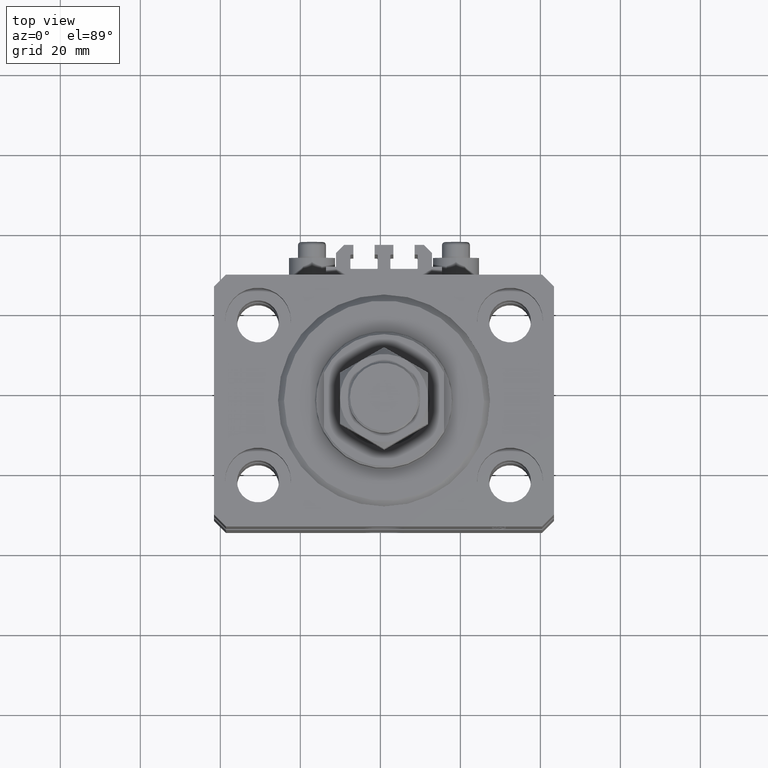
[diagram: clean part render]
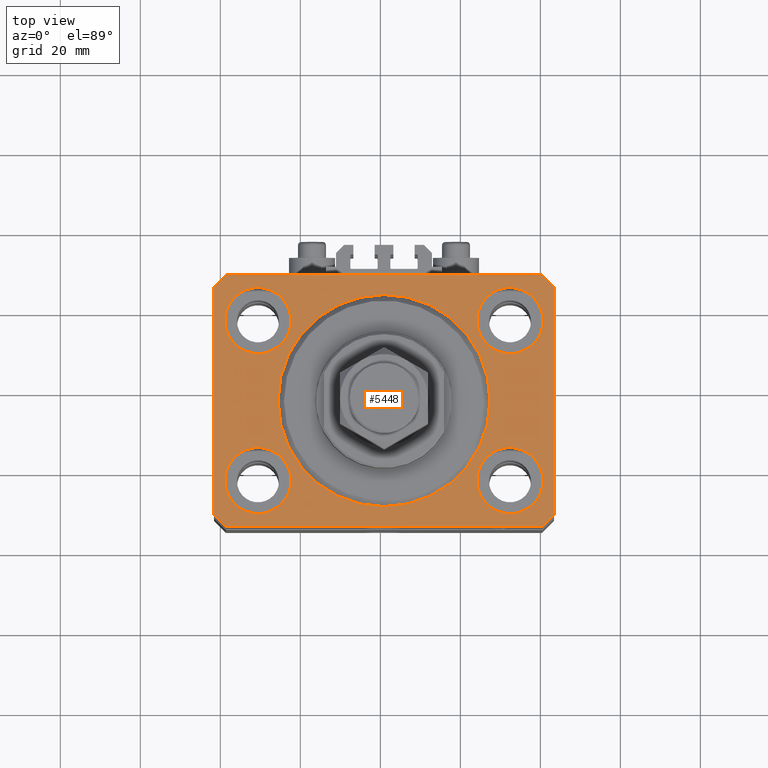
[diagram: same view with one face highlighted and labeled with its STEP entity id]
A machine part, top view. The second image highlights one B-rep face of the part: STEP entity #5448.
In plain terms, the highlighted planar face has unit normal (0, 0, 1).
Its self-contained STEP definition (entity closure, byte-faithful):
#318 = LINE ( 'NONE', #38929, #5635 ) ;
#1072 = DIRECTION ( 'NONE',  ( 0.000000000000000000, 0.000000000000000000, 1.000000000000000000 ) ) ;
#1230 = EDGE_CURVE ( 'NONE', #8570, #47015, #11390, .T. ) ;
#1261 = CIRCLE ( 'NONE', #27516, 8.249999999999992895 ) ;
#1678 = LINE ( 'NONE', #4918, #35743 ) ;
#1820 = CIRCLE ( 'NONE', #29678, 26.50000000000000355 ) ;
#1878 = FACE_BOUND ( 'NONE', #22616, .T. ) ;
#1919 = EDGE_LOOP ( 'NONE', ( #8960, #18256 ) ) ;
#2183 = VERTEX_POINT ( 'NONE', #15507 ) ;
#2328 = EDGE_CURVE ( 'NONE', #26723, #42005, #7178, .T. ) ;
#2385 = CARTESIAN_POINT ( 'NONE',  ( 0.000000000000000000, 0.000000000000000000, 0.000000000000000000 ) ) ;
#2644 = CIRCLE ( 'NONE', #33653, 8.249999999999992895 ) ;
#3558 = ORIENTED_EDGE ( 'NONE', *, *, #37922, .F. ) ;
#4709 = DIRECTION ( 'NONE',  ( 0.7071067811865483499, 0.7071067811865466846, 0.000000000000000000 ) ) ;
#4771 = EDGE_LOOP ( 'NONE', ( #26291, #34845, #44958, #41031, #20589, #34428, #11820, #7949 ) ) ;
#4918 = CARTESIAN_POINT ( 'NONE',  ( -42.50000000000000000, 28.50000000000000000, 0.000000000000000000 ) ) ;
#5053 = AXIS2_PLACEMENT_3D ( 'NONE', #23080, #42734, #11874 ) ;
#5448 = ADVANCED_FACE ( 'NONE', ( #24564, #28541, #25041, #36255, #1878, #40491 ), #9115, .T. ) ;
#5453 = VERTEX_POINT ( 'NONE', #32021 ) ;
#5500 = CIRCLE ( 'NONE', #33400, 8.250000000000000000 ) ;
#5635 = VECTOR ( 'NONE', #23973, 1000.000000000000000 ) ;
#5960 = DIRECTION ( 'NONE',  ( 8.886653596232072440E-15, 1.000000000000000000, 0.000000000000000000 ) ) ;
#6464 = EDGE_LOOP ( 'NONE', ( #28422, #3558 ) ) ;
#6903 = DIRECTION ( 'NONE',  ( 0.000000000000000000, 0.000000000000000000, 1.000000000000000000 ) ) ;
#7139 = EDGE_CURVE ( 'NONE', #41474, #18931, #1261, .T. ) ;
#7175 = DIRECTION ( 'NONE',  ( 0.000000000000000000, 0.000000000000000000, 1.000000000000000000 ) ) ;
#7178 = LINE ( 'NONE', #33349, #46416 ) ;
#7581 = AXIS2_PLACEMENT_3D ( 'NONE', #9803, #18030, #48404 ) ;
#7684 = CARTESIAN_POINT ( 'NONE',  ( 0.000000000000000000, 0.000000000000000000, 0.000000000000000000 ) ) ;
#7809 = CARTESIAN_POINT ( 'NONE',  ( -39.50000000000000711, -31.50000000000000000, 0.000000000000000000 ) ) ;
#7949 = ORIENTED_EDGE ( 'NONE', *, *, #46833, .T. ) ;
#8570 = VERTEX_POINT ( 'NONE', #27992 ) ;
#8960 = ORIENTED_EDGE ( 'NONE', *, *, #21807, .F. ) ;
#9115 = PLANE ( 'NONE',  #10725 ) ;
#9605 = EDGE_CURVE ( 'NONE', #34387, #9954, #46857, .T. ) ;
#9801 = EDGE_LOOP ( 'NONE', ( #12257, #47847 ) ) ;
#9803 = CARTESIAN_POINT ( 'NONE',  ( 0.000000000000000000, 0.000000000000000000, 0.000000000000000000 ) ) ;
#9954 = VERTEX_POINT ( 'NONE', #39340 ) ;
#10121 = CARTESIAN_POINT ( 'NONE',  ( 26.50000000000000355, 0.000000000000000000, 0.000000000000000000 ) ) ;
#10555 = DIRECTION ( 'NONE',  ( 1.000000000000000000, 0.000000000000000000, 0.000000000000000000 ) ) ;
#10725 = AXIS2_PLACEMENT_3D ( 'NONE', #2385, #29026, #43948 ) ;
#11390 = CIRCLE ( 'NONE', #39255, 8.249999999999992895 ) ;
#11519 = EDGE_CURVE ( 'NONE', #30286, #16391, #17983, .T. ) ;
#11614 = AXIS2_PLACEMENT_3D ( 'NONE', #23505, #20004, #38693 ) ;
#11820 = ORIENTED_EDGE ( 'NONE', *, *, #26388, .T. ) ;
#11874 = DIRECTION ( 'NONE',  ( 1.000000000000000000, 0.000000000000000000, 0.000000000000000000 ) ) ;
#12010 = CARTESIAN_POINT ( 'NONE',  ( 23.25000000000000355, 20.00000000000001066, 0.000000000000000000 ) ) ;
#12257 = ORIENTED_EDGE ( 'NONE', *, *, #16696, .F. ) ;
#12686 = LINE ( 'NONE', #27869, #35605 ) ;
#12756 = CARTESIAN_POINT ( 'NONE',  ( 39.50000000000056843, 31.50000000000000000, 0.000000000000000000 ) ) ;
#13165 = CARTESIAN_POINT ( 'NONE',  ( -42.50000000000000000, 28.50000000000000000, 0.000000000000000000 ) ) ;
#15085 = VERTEX_POINT ( 'NONE', #34150 ) ;
#15220 = VERTEX_POINT ( 'NONE', #10121 ) ;
#15507 = CARTESIAN_POINT ( 'NONE',  ( 42.50000000000000711, -28.50000000000000355, 0.000000000000000000 ) ) ;
#16391 = VERTEX_POINT ( 'NONE', #35569 ) ;
#16632 = CARTESIAN_POINT ( 'NONE',  ( -31.50000000000000000, -20.00000000000000000, 0.000000000000000000 ) ) ;
#16696 = EDGE_CURVE ( 'NONE', #18931, #41474, #2644, .T. ) ;
#17089 = EDGE_CURVE ( 'NONE', #15220, #20750, #1820, .T. ) ;
#17820 = CARTESIAN_POINT ( 'NONE',  ( -39.75000000000000000, -20.00000000000000000, 0.000000000000000000 ) ) ;
#17983 = CIRCLE ( 'NONE', #11614, 8.250000000000000000 ) ;
#18030 = DIRECTION ( 'NONE',  ( 0.000000000000000000, 0.000000000000000000, 1.000000000000000000 ) ) ;
#18256 = ORIENTED_EDGE ( 'NONE', *, *, #11519, .F. ) ;
#18931 = VERTEX_POINT ( 'NONE', #31241 ) ;
#19169 = CARTESIAN_POINT ( 'NONE',  ( 31.50000000000000000, -20.00000000000000000, 0.000000000000000000 ) ) ;
#19485 = DIRECTION ( 'NONE',  ( -1.000000000000000000, 0.000000000000000000, 0.000000000000000000 ) ) ;
#19913 = DIRECTION ( 'NONE',  ( 0.000000000000000000, 0.000000000000000000, 1.000000000000000000 ) ) ;
#19944 = CARTESIAN_POINT ( 'NONE',  ( 42.50000000000051870, 28.49999999999995381, 0.000000000000000000 ) ) ;
#20004 = DIRECTION ( 'NONE',  ( 0.000000000000000000, 0.000000000000000000, 1.000000000000000000 ) ) ;
#20320 = CARTESIAN_POINT ( 'NONE',  ( -39.75000000000000000, 20.00000000000000000, 0.000000000000000000 ) ) ;
#20332 = VECTOR ( 'NONE', #5960, 1000.000000000000000 ) ;
#20589 = ORIENTED_EDGE ( 'NONE', *, *, #40956, .T. ) ;
#20750 = VERTEX_POINT ( 'NONE', #28999 ) ;
#21165 = VERTEX_POINT ( 'NONE', #19944 ) ;
#21476 = EDGE_CURVE ( 'NONE', #9954, #30666, #43265, .T. ) ;
#21807 = EDGE_CURVE ( 'NONE', #16391, #30286, #36881, .T. ) ;
#22616 = EDGE_LOOP ( 'NONE', ( #29175, #40436 ) ) ;
#23080 = CARTESIAN_POINT ( 'NONE',  ( -31.50000000000000000, 20.00000000000000000, 0.000000000000000000 ) ) ;
#23505 = CARTESIAN_POINT ( 'NONE',  ( -31.50000000000000000, 20.00000000000000000, 0.000000000000000000 ) ) ;
#23973 = DIRECTION ( 'NONE',  ( 1.000000000000000000, 0.000000000000000000, 0.000000000000000000 ) ) ;
#24239 = CARTESIAN_POINT ( 'NONE',  ( -31.50000000000000000, -20.00000000000000000, 0.000000000000000000 ) ) ;
#24454 = EDGE_LOOP ( 'NONE', ( #46722, #44879 ) ) ;
#24564 = FACE_BOUND ( 'NONE', #6464, .T. ) ;
#24719 = AXIS2_PLACEMENT_3D ( 'NONE', #41310, #7175, #33821 ) ;
#24954 = CARTESIAN_POINT ( 'NONE',  ( 42.50000000000051870, 28.49999999999995381, 0.000000000000000000 ) ) ;
#25010 = DIRECTION ( 'NONE',  ( 0.000000000000000000, 0.000000000000000000, 1.000000000000000000 ) ) ;
#25022 = EDGE_CURVE ( 'NONE', #20750, #15220, #48917, .T. ) ;
#25041 = FACE_BOUND ( 'NONE', #9801, .T. ) ;
#25949 = CARTESIAN_POINT ( 'NONE',  ( 39.74999999999999289, -20.00000000000000000, 0.000000000000000000 ) ) ;
#26291 = ORIENTED_EDGE ( 'NONE', *, *, #9605, .T. ) ;
#26388 = EDGE_CURVE ( 'NONE', #2183, #21165, #36609, .T. ) ;
#26723 = VERTEX_POINT ( 'NONE', #37045 ) ;
#27516 = AXIS2_PLACEMENT_3D ( 'NONE', #34233, #1072, #35215 ) ;
#27869 = CARTESIAN_POINT ( 'NONE',  ( 39.50000000000000711, -31.50000000000000000, 0.000000000000000000 ) ) ;
#27873 = CIRCLE ( 'NONE', #24719, 8.249999999999992895 ) ;
#27992 = CARTESIAN_POINT ( 'NONE',  ( 23.25000000000000355, -20.00000000000000000, 0.000000000000000000 ) ) ;
#28162 = EDGE_CURVE ( 'NONE', #5453, #31094, #38704, .T. ) ;
#28422 = ORIENTED_EDGE ( 'NONE', *, *, #28162, .F. ) ;
#28541 = FACE_BOUND ( 'NONE', #24454, .T. ) ;
#28941 = LINE ( 'NONE', #24954, #43472 ) ;
#28999 = CARTESIAN_POINT ( 'NONE',  ( -26.50000000000000355, 3.245314017740486554E-15, 0.000000000000000000 ) ) ;
#29026 = DIRECTION ( 'NONE',  ( 0.000000000000000000, 0.000000000000000000, 1.000000000000000000 ) ) ;
#29175 = ORIENTED_EDGE ( 'NONE', *, *, #17089, .F. ) ;
#29678 = AXIS2_PLACEMENT_3D ( 'NONE', #7684, #49276, #41807 ) ;
#29854 = DIRECTION ( 'NONE',  ( 0.7071067811865471286, -0.7071067811865479058, 0.000000000000000000 ) ) ;
#30286 = VERTEX_POINT ( 'NONE', #20320 ) ;
#30666 = VERTEX_POINT ( 'NONE', #13165 ) ;
#30708 = EDGE_CURVE ( 'NONE', #15085, #2183, #12686, .T. ) ;
#31094 = VERTEX_POINT ( 'NONE', #17820 ) ;
#31241 = CARTESIAN_POINT ( 'NONE',  ( 39.74999999999999289, 20.00000000000001066, 0.000000000000000000 ) ) ;
#32021 = CARTESIAN_POINT ( 'NONE',  ( -23.25000000000000000, -20.00000000000000000, 0.000000000000000000 ) ) ;
#32129 = CARTESIAN_POINT ( 'NONE',  ( 42.50000000000000711, -28.50000000000000355, 0.000000000000000000 ) ) ;
#32933 = DIRECTION ( 'NONE',  ( -0.7071067811865356934, 0.7071067811865594521, 0.000000000000000000 ) ) ;
#33349 = CARTESIAN_POINT ( 'NONE',  ( -42.50000000000000000, -28.50000000000000000, 0.000000000000000000 ) ) ;
#33400 = AXIS2_PLACEMENT_3D ( 'NONE', #24239, #43144, #47122 ) ;
#33653 = AXIS2_PLACEMENT_3D ( 'NONE', #36722, #25010, #10555 ) ;
#33821 = DIRECTION ( 'NONE',  ( 1.000000000000000000, 0.000000000000000000, 0.000000000000000000 ) ) ;
#34150 = CARTESIAN_POINT ( 'NONE',  ( 39.50000000000000711, -31.50000000000000000, 0.000000000000000000 ) ) ;
#34233 = CARTESIAN_POINT ( 'NONE',  ( 31.50000000000000000, 20.00000000000001066, 0.000000000000000000 ) ) ;
#34387 = VERTEX_POINT ( 'NONE', #34966 ) ;
#34428 = ORIENTED_EDGE ( 'NONE', *, *, #30708, .T. ) ;
#34510 = VECTOR ( 'NONE', #34600, 1000.000000000000000 ) ;
#34600 = DIRECTION ( 'NONE',  ( -0.7071067811865471286, -0.7071067811865479058, 0.000000000000000000 ) ) ;
#34845 = ORIENTED_EDGE ( 'NONE', *, *, #21476, .T. ) ;
#34966 = CARTESIAN_POINT ( 'NONE',  ( 39.50000000000056843, 31.50000000000000000, 0.000000000000000000 ) ) ;
#35215 = DIRECTION ( 'NONE',  ( 1.000000000000000000, 0.000000000000000000, 0.000000000000000000 ) ) ;
#35569 = CARTESIAN_POINT ( 'NONE',  ( -23.25000000000000000, 20.00000000000000000, 0.000000000000000000 ) ) ;
#35605 = VECTOR ( 'NONE', #4709, 1000.000000000000000 ) ;
#35743 = VECTOR ( 'NONE', #43754, 1000.000000000000000 ) ;
#36255 = FACE_BOUND ( 'NONE', #1919, .T. ) ;
#36609 = LINE ( 'NONE', #32129, #20332 ) ;
#36722 = CARTESIAN_POINT ( 'NONE',  ( 31.50000000000000000, 20.00000000000001066, 0.000000000000000000 ) ) ;
#36881 = CIRCLE ( 'NONE', #5053, 8.250000000000000000 ) ;
#37045 = CARTESIAN_POINT ( 'NONE',  ( -42.50000000000000000, -28.50000000000000000, 0.000000000000000000 ) ) ;
#37292 = EDGE_CURVE ( 'NONE', #30666, #26723, #1678, .T. ) ;
#37922 = EDGE_CURVE ( 'NONE', #31094, #5453, #5500, .T. ) ;
#38569 = CARTESIAN_POINT ( 'NONE',  ( -39.50000000000000711, 31.50000000000000000, 0.000000000000000000 ) ) ;
#38596 = DIRECTION ( 'NONE',  ( 1.000000000000000000, 0.000000000000000000, 0.000000000000000000 ) ) ;
#38693 = DIRECTION ( 'NONE',  ( 1.000000000000000000, 0.000000000000000000, 0.000000000000000000 ) ) ;
#38704 = CIRCLE ( 'NONE', #49028, 8.250000000000000000 ) ;
#38929 = CARTESIAN_POINT ( 'NONE',  ( -39.50000000000000711, -31.50000000000000000, 0.000000000000000000 ) ) ;
#39255 = AXIS2_PLACEMENT_3D ( 'NONE', #19169, #19913, #38596 ) ;
#39340 = CARTESIAN_POINT ( 'NONE',  ( -39.50000000000000711, 31.50000000000000000, 0.000000000000000000 ) ) ;
#40146 = EDGE_CURVE ( 'NONE', #47015, #8570, #27873, .T. ) ;
#40436 = ORIENTED_EDGE ( 'NONE', *, *, #25022, .F. ) ;
#40491 = FACE_OUTER_BOUND ( 'NONE', #4771, .T. ) ;
#40956 = EDGE_CURVE ( 'NONE', #42005, #15085, #318, .T. ) ;
#41031 = ORIENTED_EDGE ( 'NONE', *, *, #2328, .T. ) ;
#41310 = CARTESIAN_POINT ( 'NONE',  ( 31.50000000000000000, -20.00000000000000000, 0.000000000000000000 ) ) ;
#41474 = VERTEX_POINT ( 'NONE', #12010 ) ;
#41807 = DIRECTION ( 'NONE',  ( 1.000000000000000000, 0.000000000000000000, 0.000000000000000000 ) ) ;
#42005 = VERTEX_POINT ( 'NONE', #7809 ) ;
#42734 = DIRECTION ( 'NONE',  ( 0.000000000000000000, 0.000000000000000000, 1.000000000000000000 ) ) ;
#43144 = DIRECTION ( 'NONE',  ( 0.000000000000000000, 0.000000000000000000, 1.000000000000000000 ) ) ;
#43265 = LINE ( 'NONE', #38569, #34510 ) ;
#43472 = VECTOR ( 'NONE', #32933, 1000.000000000000114 ) ;
#43754 = DIRECTION ( 'NONE',  ( 0.000000000000000000, -1.000000000000000000, 0.000000000000000000 ) ) ;
#43948 = DIRECTION ( 'NONE',  ( 1.000000000000000000, 0.000000000000000000, -0.000000000000000000 ) ) ;
#44879 = ORIENTED_EDGE ( 'NONE', *, *, #1230, .F. ) ;
#44958 = ORIENTED_EDGE ( 'NONE', *, *, #37292, .T. ) ;
#45735 = VECTOR ( 'NONE', #19485, 1000.000000000000000 ) ;
#46416 = VECTOR ( 'NONE', #29854, 1000.000000000000000 ) ;
#46722 = ORIENTED_EDGE ( 'NONE', *, *, #40146, .F. ) ;
#46833 = EDGE_CURVE ( 'NONE', #21165, #34387, #28941, .T. ) ;
#46857 = LINE ( 'NONE', #12756, #45735 ) ;
#47015 = VERTEX_POINT ( 'NONE', #25949 ) ;
#47122 = DIRECTION ( 'NONE',  ( 1.000000000000000000, 0.000000000000000000, 0.000000000000000000 ) ) ;
#47500 = DIRECTION ( 'NONE',  ( 1.000000000000000000, 0.000000000000000000, 0.000000000000000000 ) ) ;
#47847 = ORIENTED_EDGE ( 'NONE', *, *, #7139, .F. ) ;
#48404 = DIRECTION ( 'NONE',  ( 1.000000000000000000, 0.000000000000000000, 0.000000000000000000 ) ) ;
#48917 = CIRCLE ( 'NONE', #7581, 26.50000000000000355 ) ;
#49028 = AXIS2_PLACEMENT_3D ( 'NONE', #16632, #6903, #47500 ) ;
#49276 = DIRECTION ( 'NONE',  ( 0.000000000000000000, 0.000000000000000000, 1.000000000000000000 ) ) ;